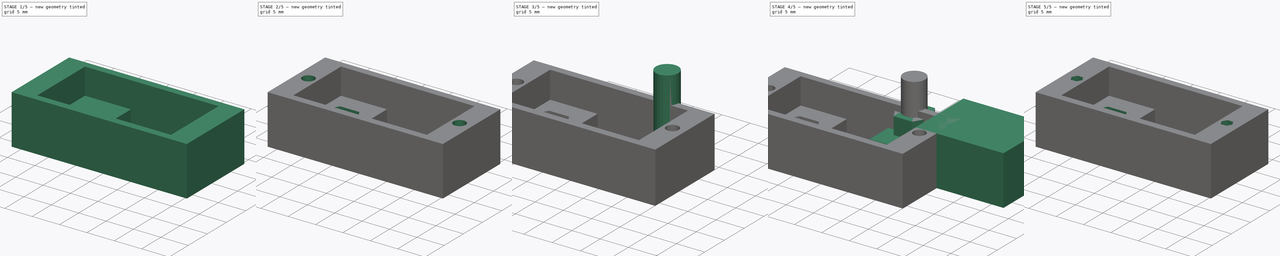
[diagram: build sequence overview — one tinted view per stage of 5, left to right]
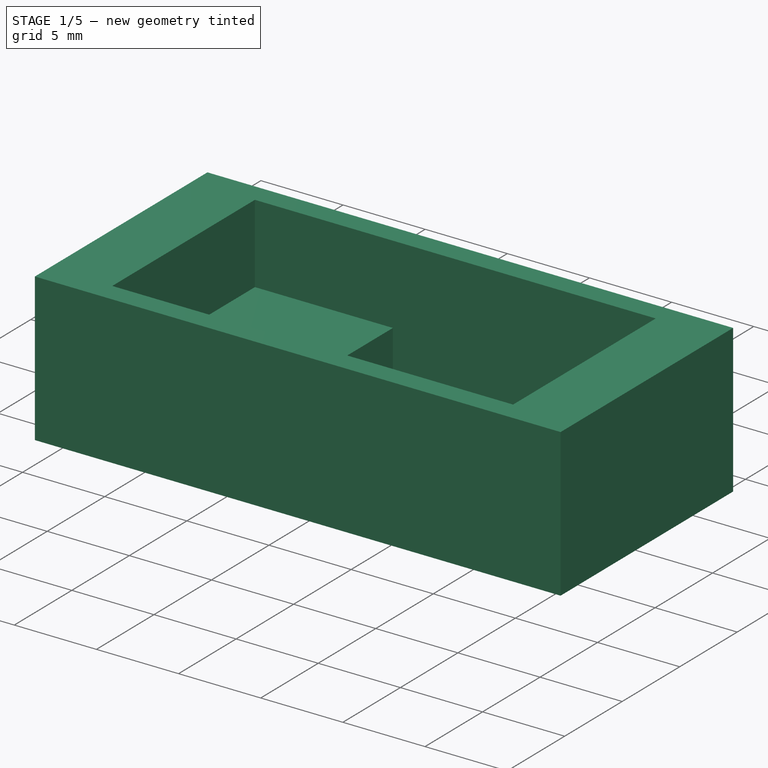
[diagram: stage 1 of 5 — iso view after this stage's code; geometry added in this stage tinted green]
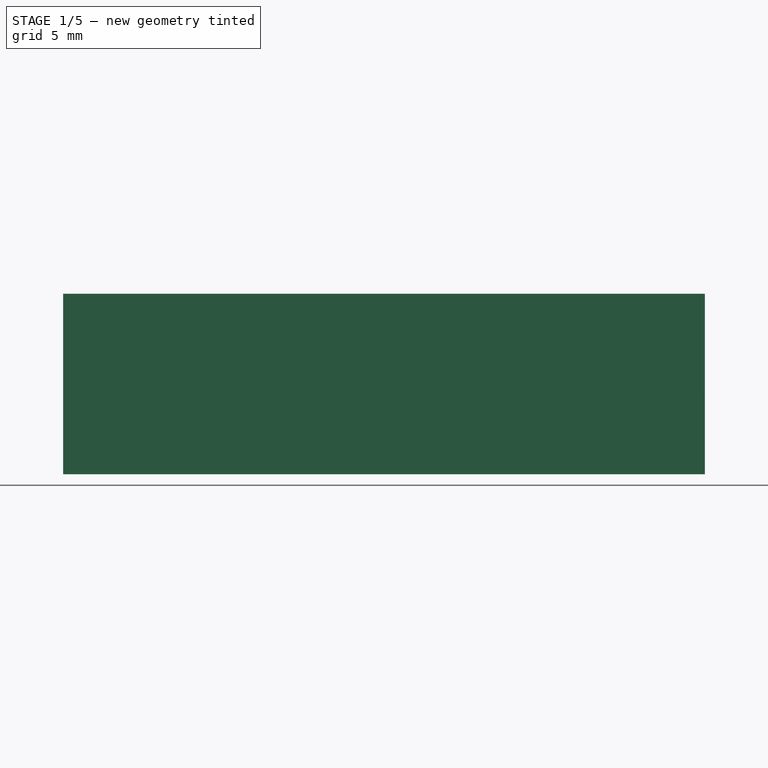
[diagram: stage 1 of 5 — front view after this stage's code; geometry added in this stage tinted green]
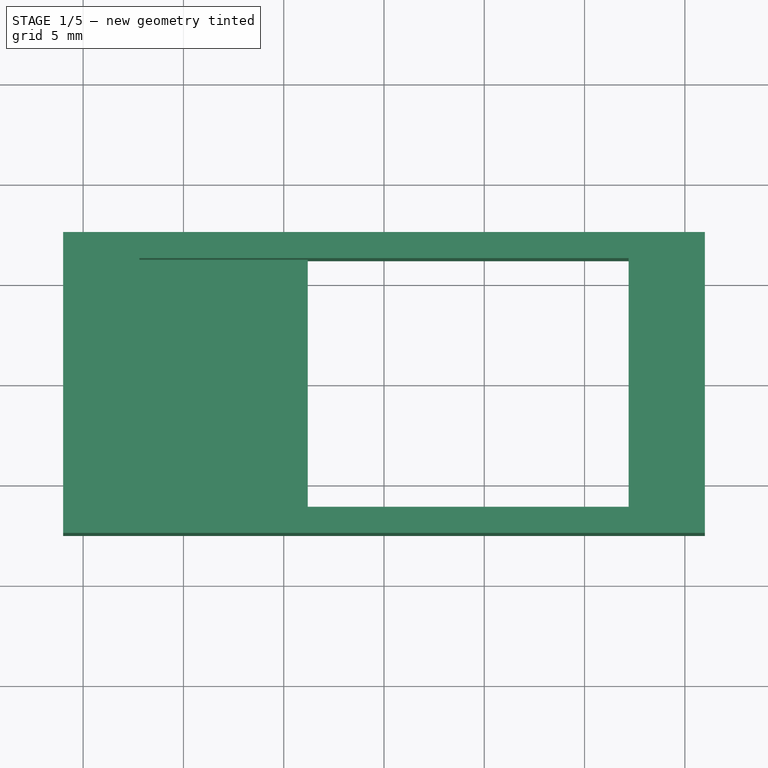
[diagram: stage 1 of 5 — top view after this stage's code; geometry added in this stage tinted green]
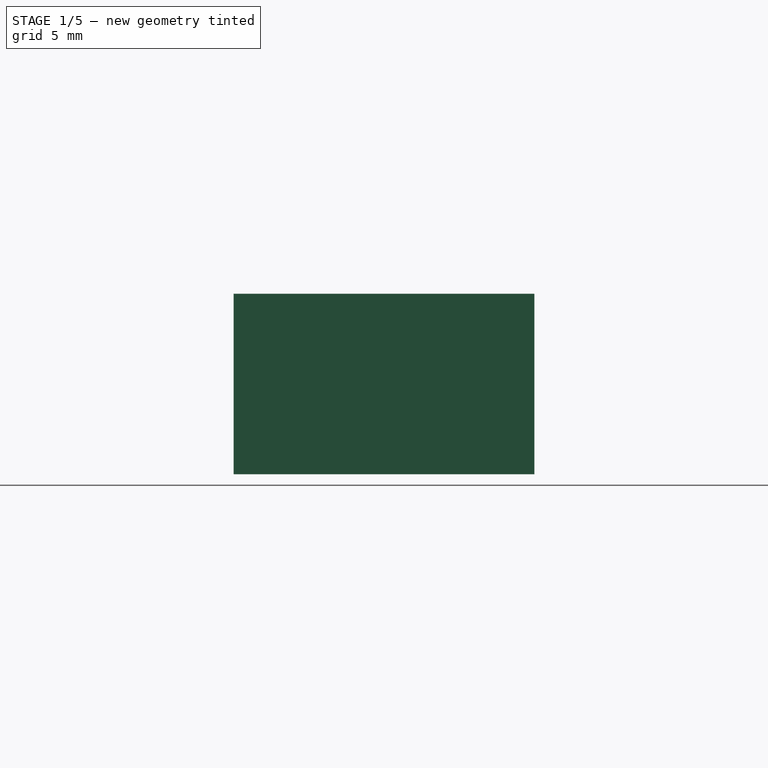
[diagram: stage 1 of 5 — right view after this stage's code; geometry added in this stage tinted green]
FCSTD DOCUMENT  (FreeCAD 0.14R3702 (Git))
Label: claw-miniservo-box
License: CC-BY 3.0
LicenseURL: http://creativecommons.org/licenses/by/3.0/
objects: Sketcher::SketchObject×6, PartDesign::Pocket×5, Part::Prism×4, Part::Box×3, Part::MultiFuse×1, Part::Cut×1, PartDesign::Pad×1
note: 27 computed .brp shape members not serialized (recipe doc carries the construction recipe); baked Part::Feature solids carry a one-line shape summary decoded from their .brp

FEATURE [Sketcher::SketchObject] Sketch  label="main-body-sketch"
  sketch-geometry (4):
    g0: LineSegment StartX=-16 StartY=7.5 StartZ=0 EndX=16 EndY=7.5 EndZ=0
    g1: LineSegment StartX=16 StartY=7.5 StartZ=0 EndX=16 EndY=-7.5 EndZ=0
    g2: LineSegment StartX=16 StartY=-7.5 StartZ=0 EndX=-16 EndY=-7.5 EndZ=0
    g3: LineSegment StartX=-16 StartY=-7.5 StartZ=0 EndX=-16 EndY=7.5 EndZ=0
  constraints (11):
    c: Coincident(g0,g1)
    c: Coincident(g1,g2)
    c: Coincident(g2,g3)
    c: Coincident(g3,g0)
    c: Horizontal(g0)
    c: Horizontal(g2)
    c: Vertical(g1)
    c: Vertical(g3)
    c: Symmetric(g0,g1,g-1)
    c: DistanceX(g0) = 32
    c: DistanceY(g1) = -15
FEATURE [PartDesign::Pad] Pad  label="main-body"
  Length = 9
  Length2 = 100
  Sketch = -> Sketch
  Type = 0
FEATURE [Sketcher::SketchObject] Sketch001  label="bottom-cutout-1-sketch"
  ExternalGeometry = -> [Pad]
  Placement = pos=(0,0,0) rot=(1,0,0;3.14159rad)
  Support = -> Pad [Face5]
  sketch-geometry (4):
    g0: LineSegment StartX=-3.8 StartY=6.2 StartZ=0 EndX=12.2 EndY=6.2 EndZ=0
    g1: LineSegment StartX=12.2 StartY=6.2 StartZ=0 EndX=12.2 EndY=-6.2 EndZ=0
    g2: LineSegment StartX=12.2 StartY=-6.2 StartZ=0 EndX=-3.8 EndY=-6.2 EndZ=0
    g3: LineSegment StartX=-3.8 StartY=-6.2 StartZ=0 EndX=-3.8 EndY=6.2 EndZ=0
  constraints (12):
    c: Coincident(g0,g1)
    c: Coincident(g1,g2)
    c: Coincident(g2,g3)
    c: Coincident(g3,g0)
    c: Horizontal(g0)
    c: Horizontal(g2)
    c: Vertical(g1)
    c: Vertical(g3)
    c: Symmetric(g0,g1,g-1)
    c: DistanceX(g0) = 16
    c: DistanceY(g1) = -12.4
    c: DistanceX(g0,g-3) = 3.8
FEATURE [PartDesign::Pocket] Pocket  label="bottom-cutout-1"
  Length = 5
  Sketch = -> Sketch001
  Type = 1
FEATURE [Sketcher::SketchObject] Sketch002  label="top-cutout-2-sketch"
  ExternalGeometry = -> [Pocket]
  Placement = pos=(0,0,9) rot=(0,0,1;0rad)
  Support = -> Pocket [Face5]
  sketch-geometry (4):
    g0: LineSegment StartX=-12.2 StartY=6.2 StartZ=0 EndX=-3.8 EndY=6.2 EndZ=0
    g1: LineSegment StartX=-3.8 StartY=6.2 StartZ=0 EndX=-3.8 EndY=-6.2 EndZ=0
    g2: LineSegment StartX=-3.8 StartY=-6.2 StartZ=0 EndX=-12.2 EndY=-6.2 EndZ=0
    g3: LineSegment StartX=-12.2 StartY=-6.2 StartZ=0 EndX=-12.2 EndY=6.2 EndZ=0
  constraints (11):
    c: Coincident(g0,g1)
    c: Coincident(g1,g2)
    c: Coincident(g2,g3)
    c: Coincident(g3,g0)
    c: Horizontal(g0)
    c: Horizontal(g2)
    c: Vertical(g1)
    c: Vertical(g3)
    c: Symmetric(g0,g1,g-1)
    c: Coincident(g0,g-3)
    c: DistanceX(g0) = 8.4
FEATURE [PartDesign::Pocket] Pocket001  label="top-cutout-2"
  Length = 4.8
  Sketch = -> Sketch002
  Type = 0
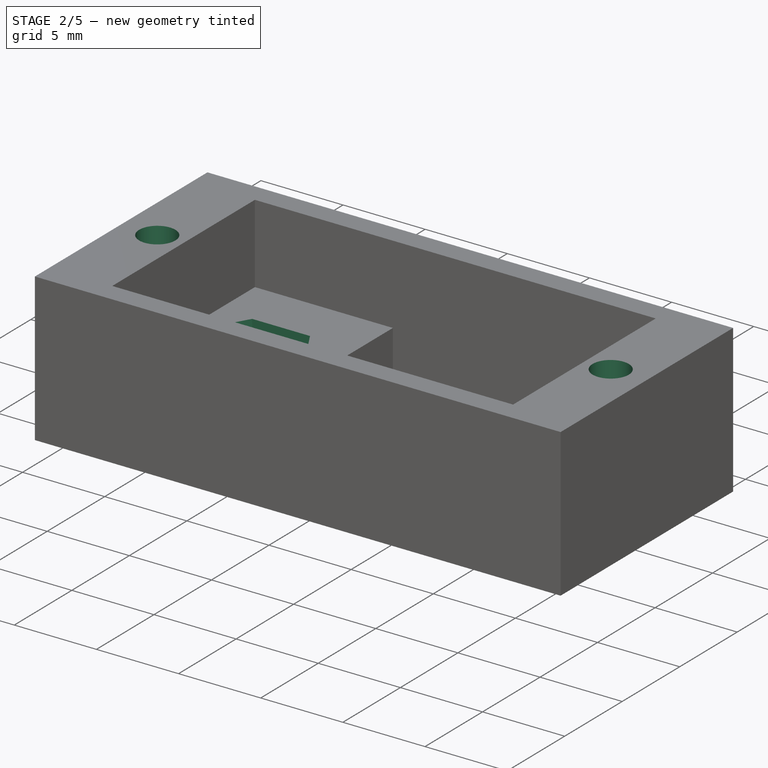
[diagram: stage 2 of 5 — iso view after this stage's code; geometry added in this stage tinted green]
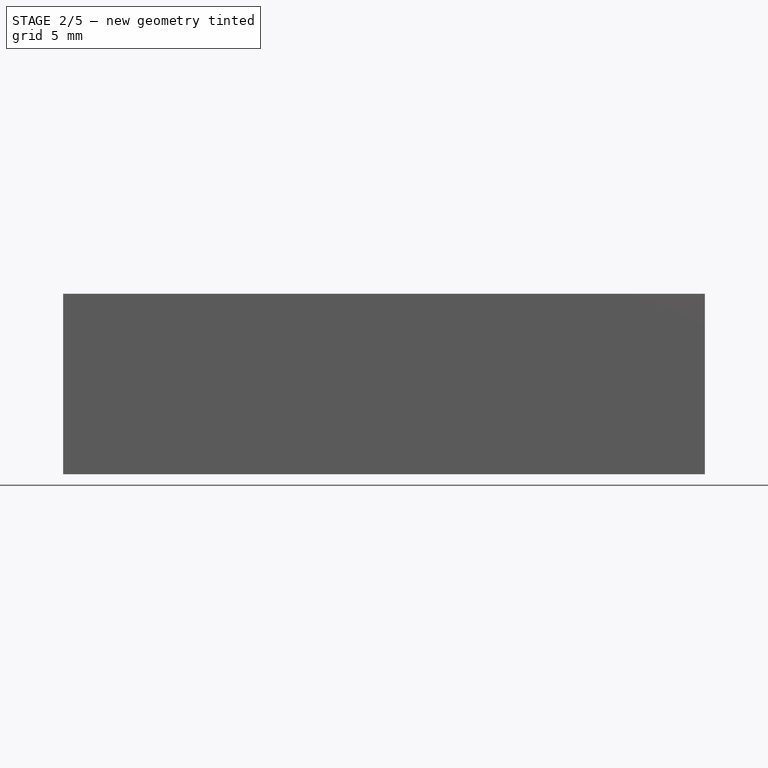
[diagram: stage 2 of 5 — front view after this stage's code; geometry added in this stage tinted green]
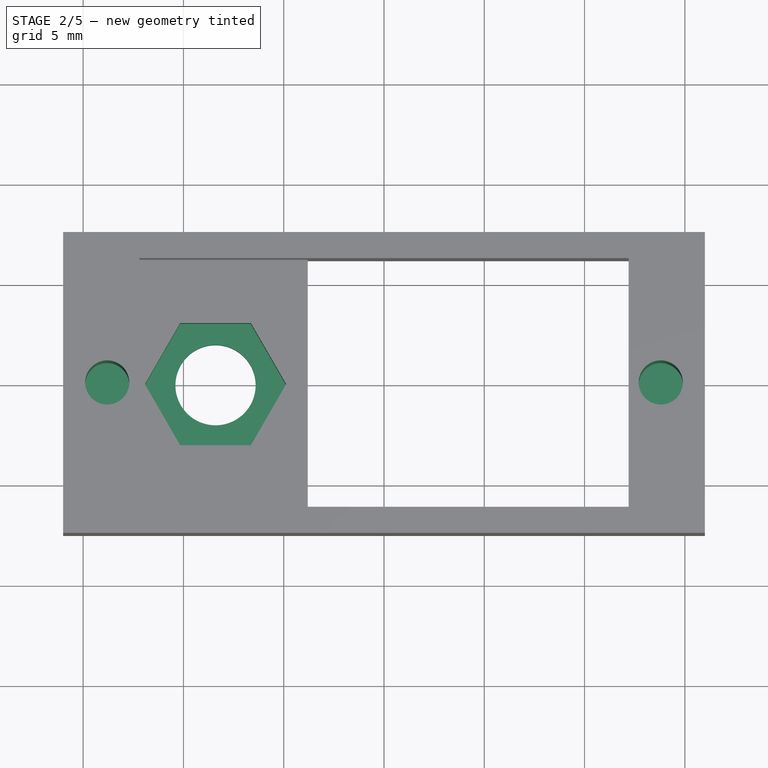
[diagram: stage 2 of 5 — top view after this stage's code; geometry added in this stage tinted green]
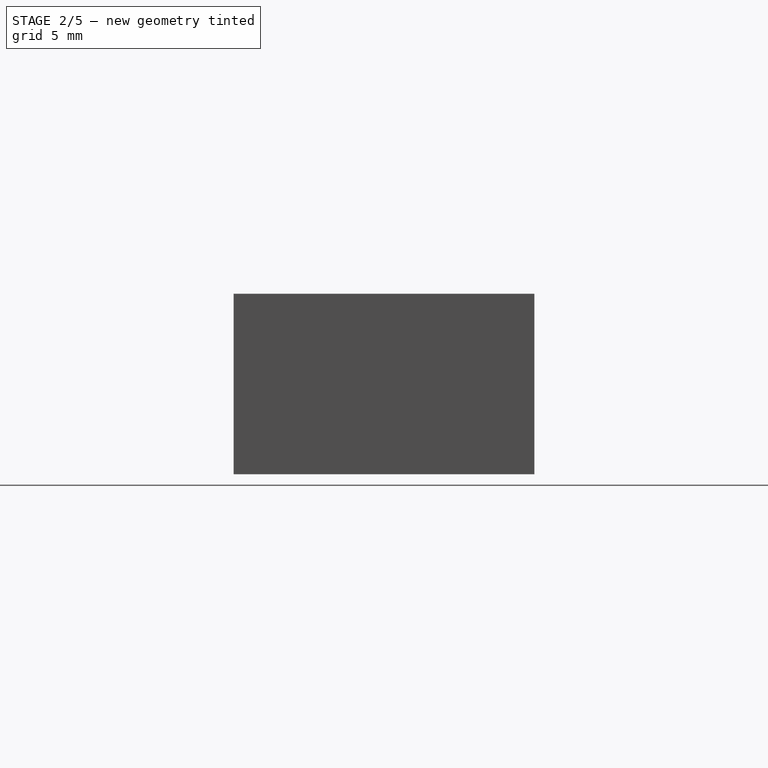
[diagram: stage 2 of 5 — right view after this stage's code; geometry added in this stage tinted green]
FEATURE [Sketcher::SketchObject] Sketch003  label="hex-nut-cutout-1-sketch"
  Placement = pos=(0,0,4.2) rot=(0,0,1;0rad)
  Support = -> Pocket001 [Face10]
  sketch-geometry (9):
    g0: LineSegment StartX=-11.9218 StartY=0 StartZ=0 EndX=-10.1609 EndY=3.05 EndZ=0
    g1: LineSegment StartX=-10.1609 StartY=3.05 StartZ=0 EndX=-6.63908 EndY=3.05 EndZ=0
    g2: LineSegment [constr] StartX=-8.4 StartY=3.05 StartZ=0 EndX=-8.4 EndY=0 EndZ=0
    g3: LineSegment [constr] StartX=-11.9218 StartY=0 StartZ=0 EndX=-8.4 EndY=0 EndZ=0
    g4: LineSegment [constr] StartX=-10.1609 StartY=3.05 StartZ=0 EndX=-8.4 EndY=0 EndZ=0
    g5: LineSegment StartX=-11.9218 StartY=0 StartZ=0 EndX=-10.1609 EndY=-3.05 EndZ=0
    g6: LineSegment StartX=-10.1609 StartY=-3.05 StartZ=0 EndX=-6.63908 EndY=-3.05 EndZ=0
    g7: LineSegment StartX=-6.63908 StartY=-3.05 StartZ=0 EndX=-4.87816 EndY=0 EndZ=0
    g8: LineSegment StartX=-4.87816 StartY=0 StartZ=0 EndX=-6.63908 EndY=3.05 EndZ=0
  constraints (23):
    c: Coincident(g0,g1)
    c: Vertical(g2)
    c: Horizontal(g3)
    c: Coincident(g3,g2)
    c: Symmetric(g0,g1,g2)
    c: PointOnObject(g2,g1)
    c: Coincident(g3,g0)
    c: Coincident(g4,g2)
    c: Coincident(g4,g0)
    c: Angle(g4,g3) = 1.0472
    c: Equal(g3,g4)
    c: Coincident(g5,g6)
    c: Horizontal(g6)
    c: Coincident(g6,g7)
    c: Coincident(g7,g8)
    c: Coincident(g8,g1)
    c: Coincident(g5,g0)
    c: Symmetric(g7,g0,g2)
    c: Symmetric(g5,g0,g3)
    c: Symmetric(g6,g1,g3)
    c: DistanceY(g6,g1) = 6.1
    c: PointOnObject(g2,g-1)
    c: DistanceX(g-1,g2) = -8.4
FEATURE [PartDesign::Pocket] Pocket002  label="hex-nut-cutout-1"
  Length = 3.1
  Sketch = -> Sketch003
  Type = 0
FEATURE [Sketcher::SketchObject] Sketch004
  Placement = pos=(0,0,0) rot=(1,0,0;3.14159rad)
  Support = -> Pocket002 [Face4]
  sketch-geometry (1):
    g0: Circle CenterX=-8.4 CenterY=0 CenterZ=0 NormalX=0 NormalY=0 NormalZ=1 Radius=2
  constraints (3):
    c: PointOnObject(g0,g-1)
    c: DistanceX(g-1,g0) = -8.4
    c: Radius(g0) = 2
FEATURE [PartDesign::Pocket] Pocket003  label="bottom-drill"
  Length = 5
  Sketch = -> Sketch004
  Type = 1
FEATURE [Sketcher::SketchObject] Sketch005  label="top-drills-sketch"
  Placement = pos=(0,0,9) rot=(0,0,1;0rad)
  Support = -> Pocket003 [Face5]
  sketch-geometry (2):
    g0: Circle CenterX=-13.8 CenterY=0 CenterZ=0 NormalX=0 NormalY=0 NormalZ=1 Radius=1.1
    g1: Circle CenterX=13.8 CenterY=0 CenterZ=0 NormalX=0 NormalY=0 NormalZ=1 Radius=1.1
  constraints (5):
    c: Symmetric(g1,g0,g-2)
    c: DistanceX(g0,g1) = 27.6
    c: Equal(g0,g1)
    c: PointOnObject(g0,g-1)
    c: Radius(g0) = 1.1
FEATURE [PartDesign::Pocket] Pocket004  label="top-drills"
  Length = 8
  Sketch = -> Sketch005
  Type = 0
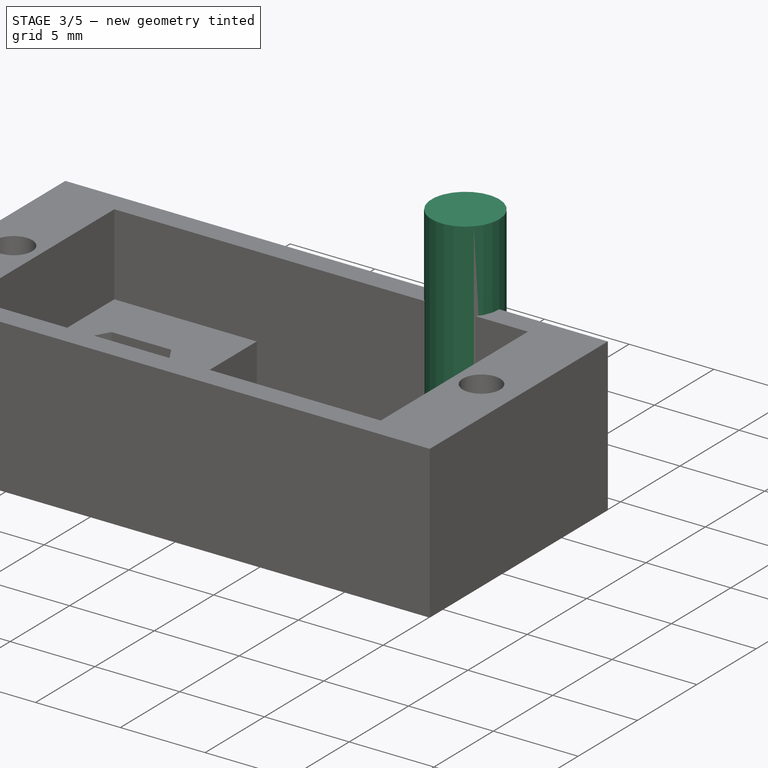
[diagram: stage 3 of 5 — iso view after this stage's code; geometry added in this stage tinted green]
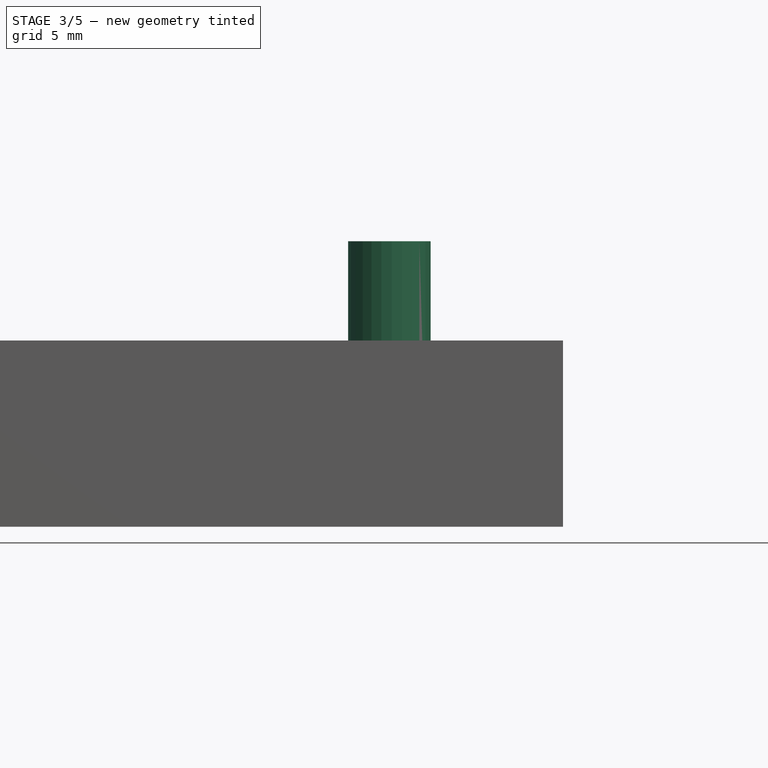
[diagram: stage 3 of 5 — front view after this stage's code; geometry added in this stage tinted green]
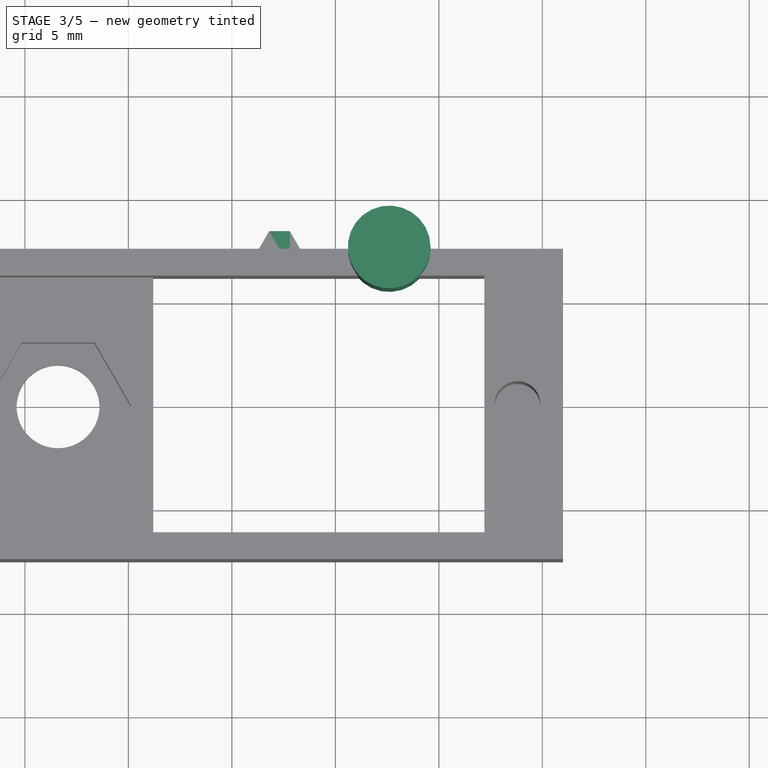
[diagram: stage 3 of 5 — top view after this stage's code; geometry added in this stage tinted green]
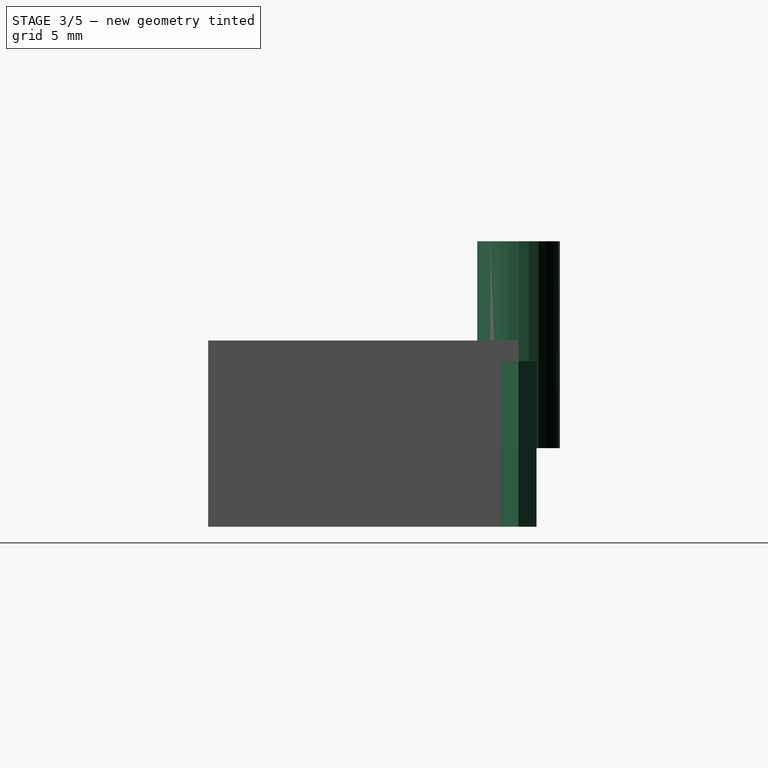
[diagram: stage 3 of 5 — right view after this stage's code; geometry added in this stage tinted green]
FEATURE [Part::Prism] prism001
  Circumradius = 2
  Height = 10
  Placement = pos=(7.6,7.5,3.8) rot=(0,0,1;0rad)
  Polygon = 25
FEATURE [Part::Prism] prism002
  Circumradius = 1
  Height = 8
  Placement = pos=(2.3,7.5,0) rot=(0,0,1;0rad)
  Polygon = 6
FEATURE [Part::Prism] prism003
  Circumradius = 1
  Height = 8
  Placement = pos=(29.7,7.5,0) rot=(0,0,1;0rad)
  Polygon = 6
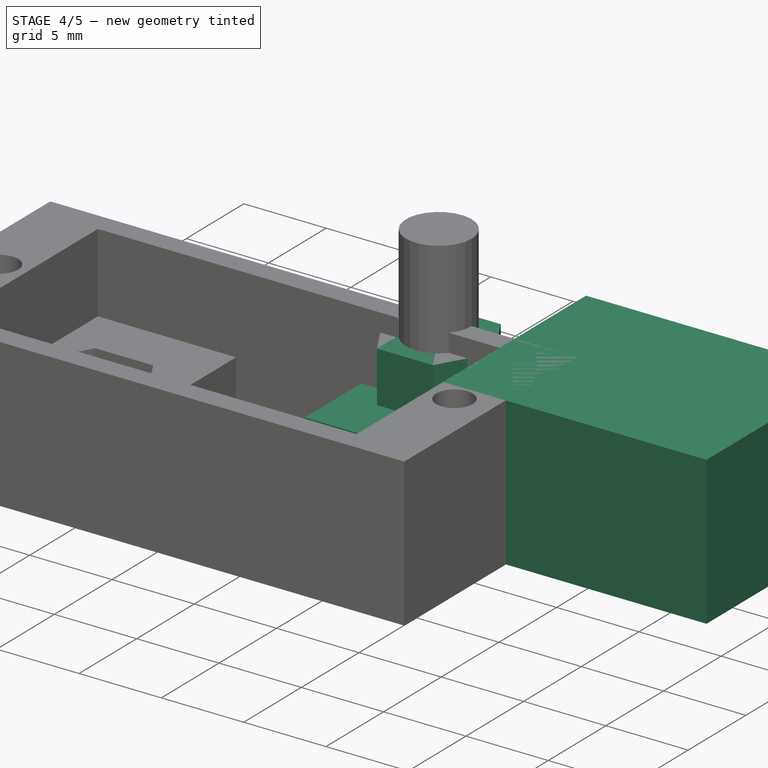
[diagram: stage 4 of 5 — iso view after this stage's code; geometry added in this stage tinted green]
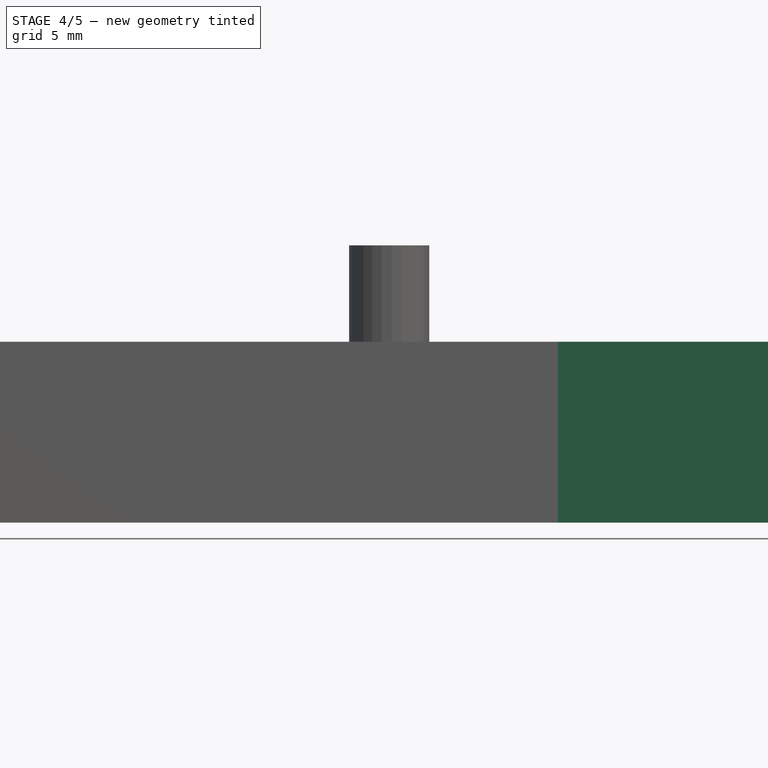
[diagram: stage 4 of 5 — front view after this stage's code; geometry added in this stage tinted green]
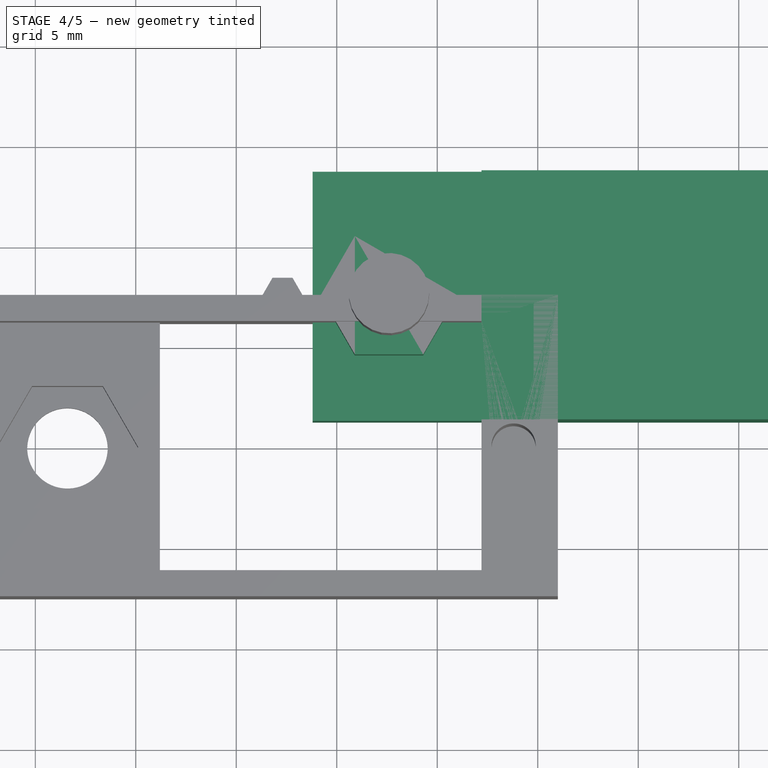
[diagram: stage 4 of 5 — top view after this stage's code; geometry added in this stage tinted green]
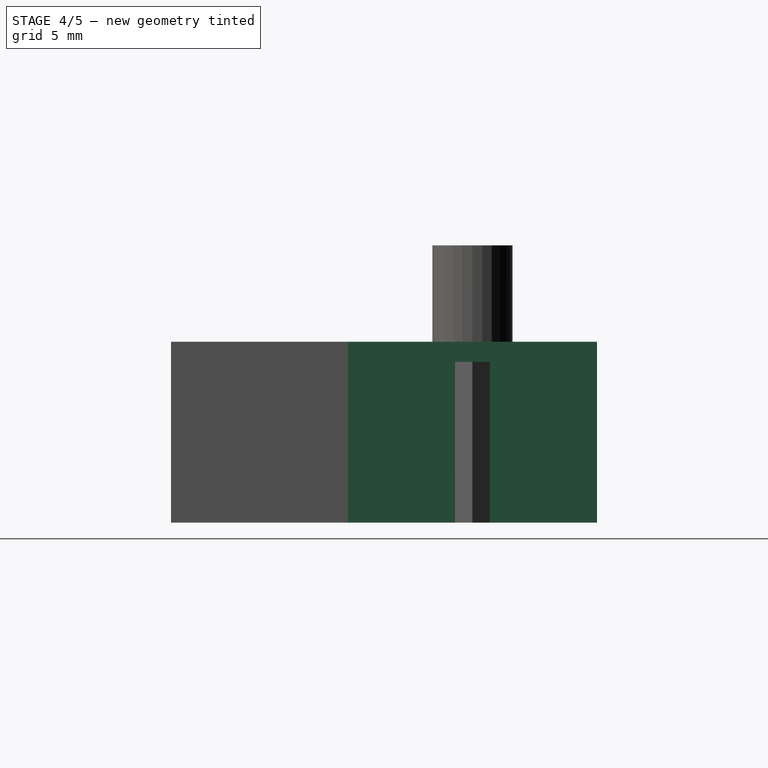
[diagram: stage 4 of 5 — right view after this stage's code; geometry added in this stage tinted green]
FEATURE [Part::Box] cube001
  Height = 9
  Length = 16
  Placement = pos=(12.2,1.3,0) rot=(0,0,1;0rad)
  Width = 12.4
FEATURE [Part::Box] cube002
  Height = 4.8
  Length = 24.4
  Placement = pos=(3.8,1.3,0) rot=(0,0,1;0rad)
  Width = 12.4
FEATURE [Part::Prism] prism
  Circumradius = 3.4
  Height = 4.1
  Placement = pos=(7.6,7.5,3.8) rot=(0,0,1;0rad)
  Polygon = 6
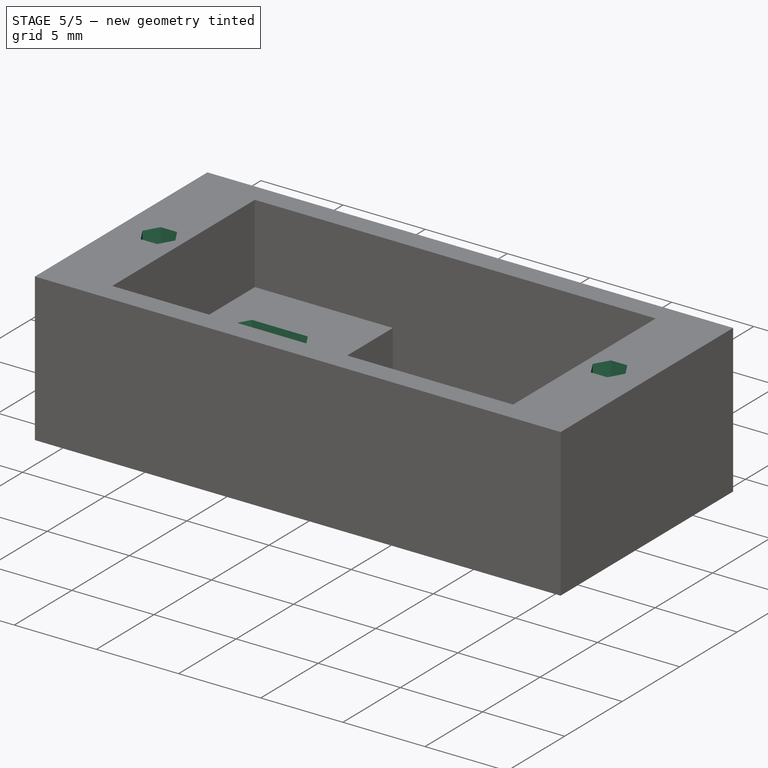
[diagram: stage 5 of 5 — iso view after this stage's code; geometry added in this stage tinted green]
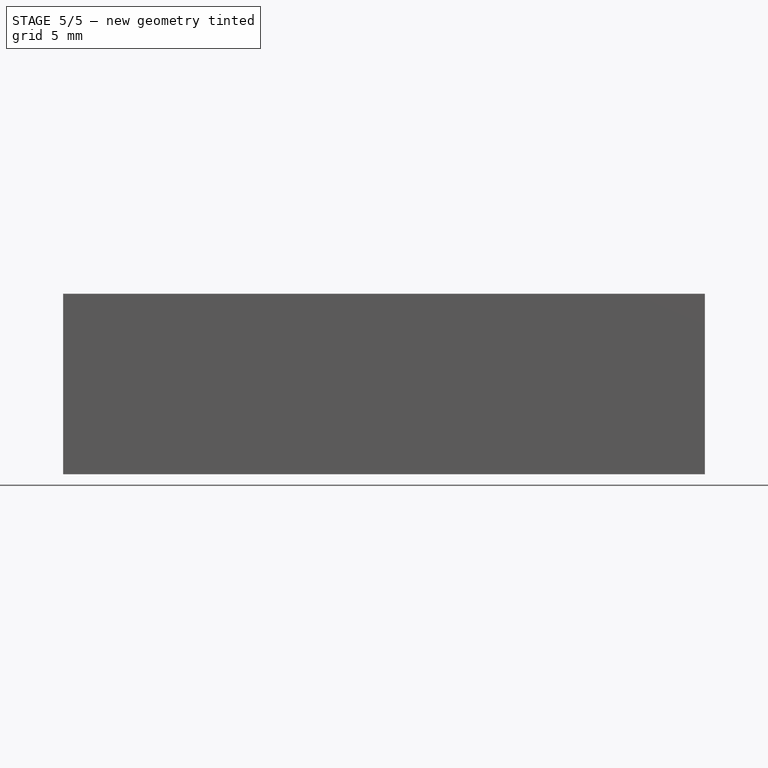
[diagram: stage 5 of 5 — front view after this stage's code; geometry added in this stage tinted green]
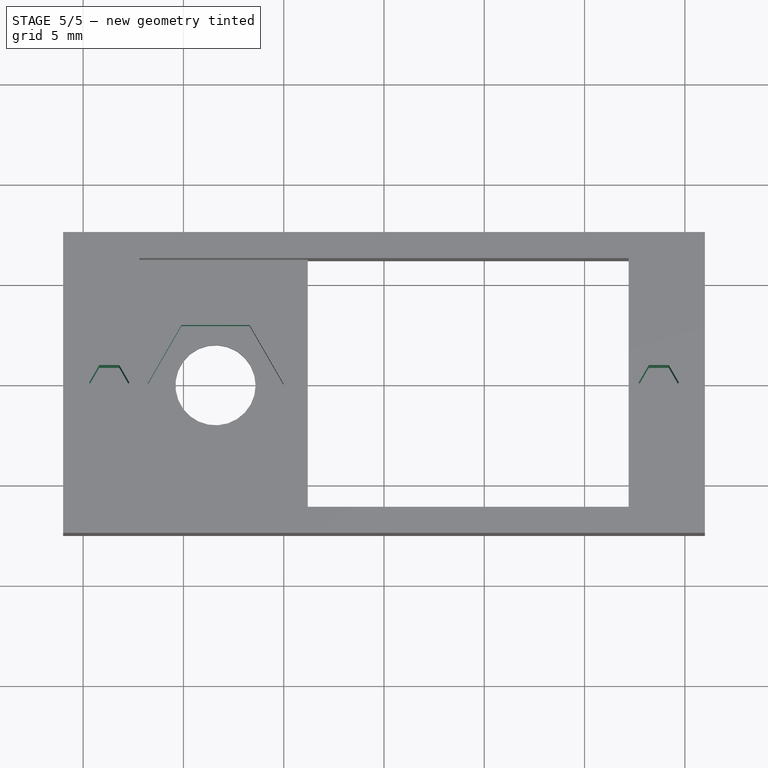
[diagram: stage 5 of 5 — top view after this stage's code; geometry added in this stage tinted green]
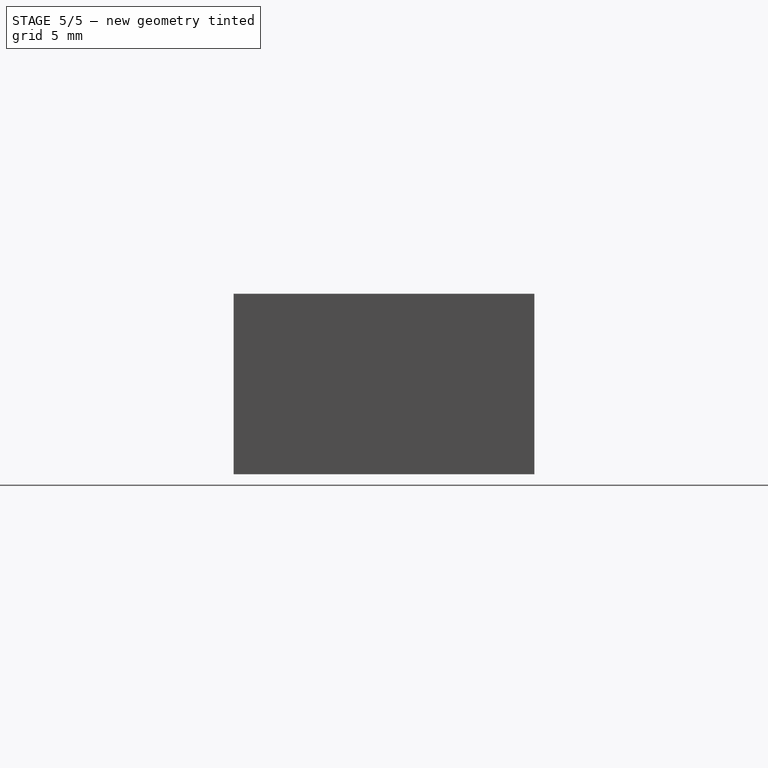
[diagram: stage 5 of 5 — right view after this stage's code; geometry added in this stage tinted green]
FEATURE [Part::Box] cube
  Height = 9
  Length = 32
  Width = 15
FEATURE [Part::MultiFuse] union
  Shapes = -> [cube001,cube002,prism,prism001,prism002,prism003]
FEATURE [Part::Cut] difference
  Base = -> cube
  Placement = pos=(-16,7.5,9) rot=(1,0,0;3.14159rad)
  Tool = -> union
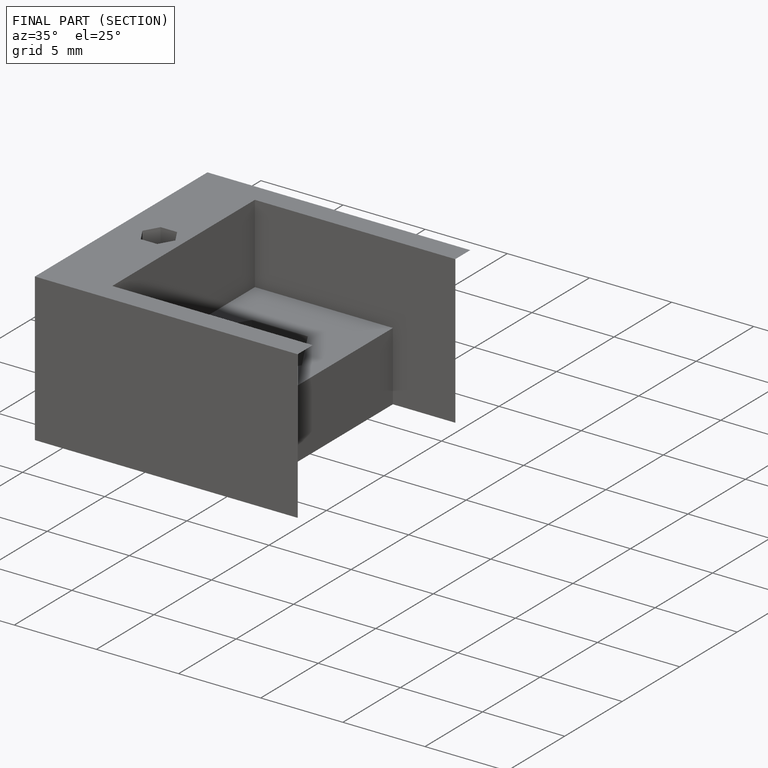
[diagram: finished part — half-section view (interior)]
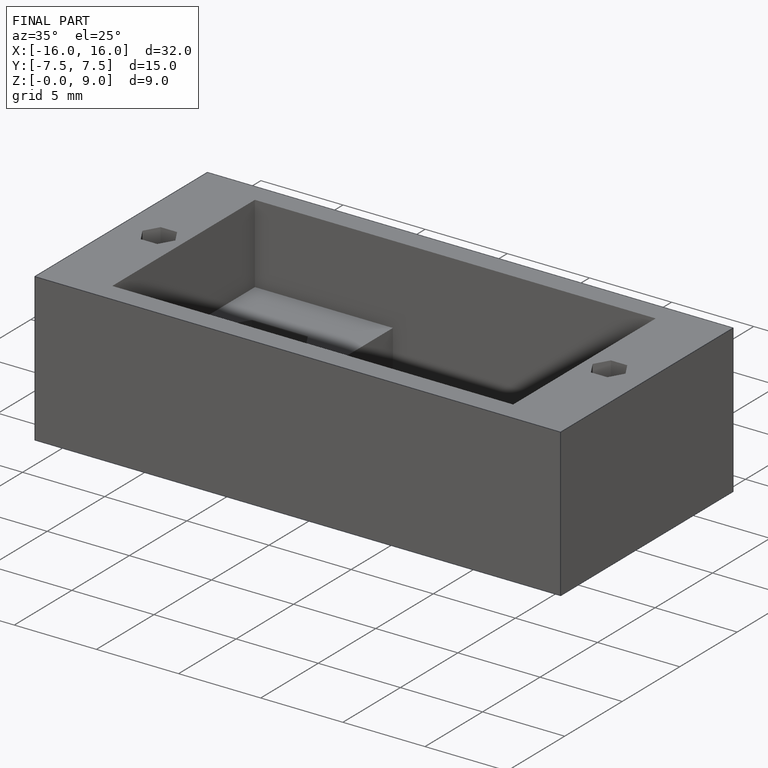
[diagram: finished part — iso view with bounding-box wireframe]
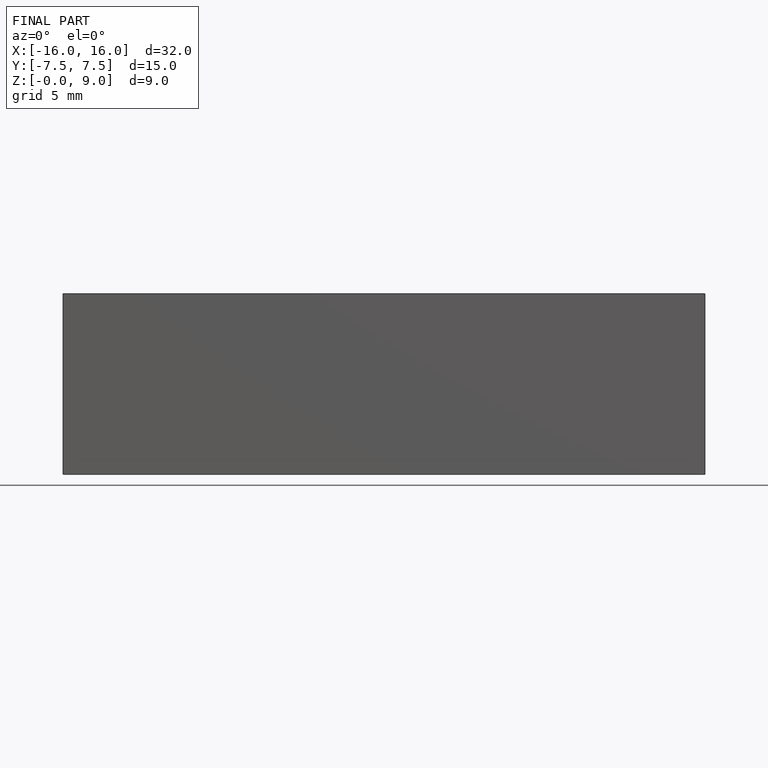
[diagram: finished part — front view with bounding-box wireframe]
